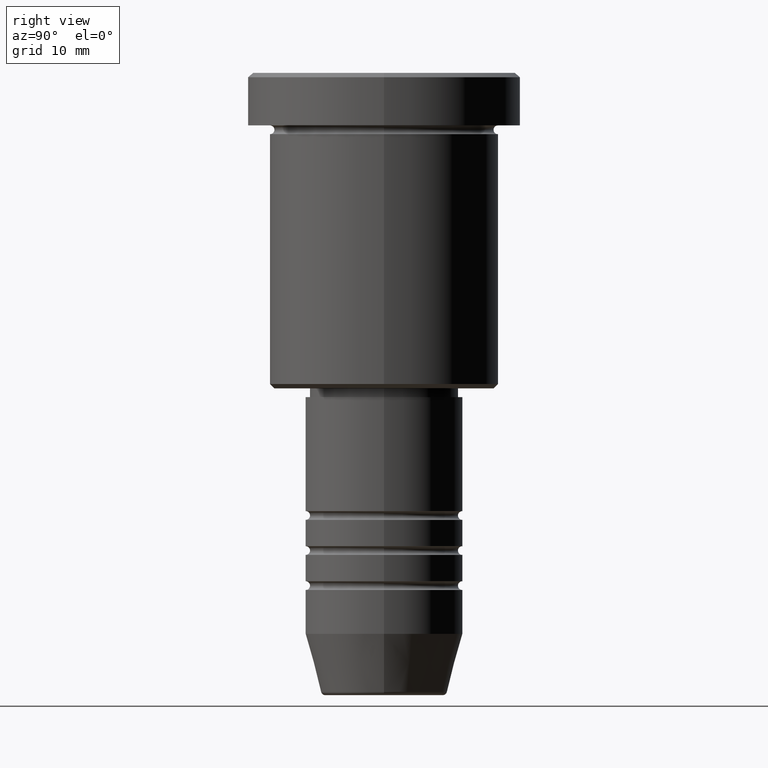
[diagram: clean part render]
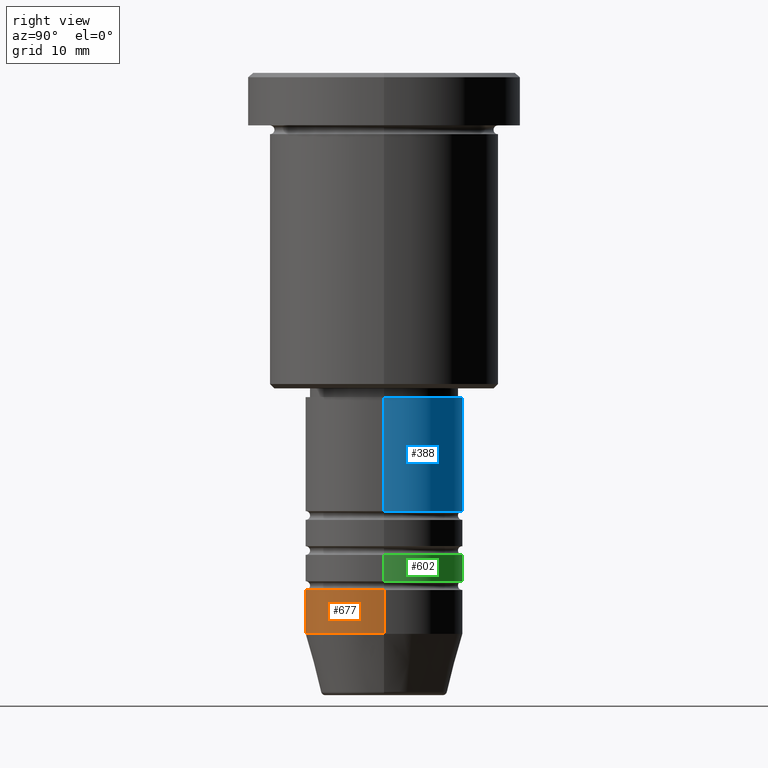
[diagram: same view with three faces highlighted in distinct colors, each labeled with its STEP entity id]
A machine part, right view with three faces highlighted in distinct colors.
Their STEP definitions:

[orange] entity #677 — the highlighted cylindrical surface (partial cylindrical patch) has radius 9 mm, axis along (-0, -0, 1).
#30 = VERTEX_POINT ( 'NONE', #528 ) ;
#46 = AXIS2_PLACEMENT_3D ( 'NONE', #117, #662, #477 ) ;
#51 = EDGE_CURVE ( 'NONE', #225, #103, #625, .T. ) ;
#56 = DIRECTION ( 'NONE',  ( -0.000000000000000000, -0.000000000000000000, 1.000000000000000000 ) ) ;
#58 = AXIS2_PLACEMENT_3D ( 'NONE', #235, #970, #153 ) ;
#103 = VERTEX_POINT ( 'NONE', #449 ) ;
#117 = CARTESIAN_POINT ( 'NONE',  ( 0.000000000000000000, 0.000000000000000000, -64.00000000000000000 ) ) ;
#146 = ORIENTED_EDGE ( 'NONE', *, *, #1099, .T. ) ;
#153 = DIRECTION ( 'NONE',  ( 1.000000000000000000, 0.000000000000000000, 0.000000000000000000 ) ) ;
#225 = VERTEX_POINT ( 'NONE', #921 ) ;
#235 = CARTESIAN_POINT ( 'NONE',  ( 0.000000000000000000, 0.000000000000000000, -59.00000000000000711 ) ) ;
#238 = VECTOR ( 'NONE', #994, 1000.000000000000000 ) ;
#246 = CYLINDRICAL_SURFACE ( 'NONE', #398, 9.000000000000000000 ) ;
#340 = VECTOR ( 'NONE', #56, 1000.000000000000000 ) ;
#398 = AXIS2_PLACEMENT_3D ( 'NONE', #811, #434, #616 ) ;
#434 = DIRECTION ( 'NONE',  ( -0.000000000000000000, -0.000000000000000000, 1.000000000000000000 ) ) ;
#449 = CARTESIAN_POINT ( 'NONE',  ( -9.000000000000000000, 1.102182119232617714E-15, -59.00000000000000711 ) ) ;
#477 = DIRECTION ( 'NONE',  ( 1.000000000000000000, 0.000000000000000000, 0.000000000000000000 ) ) ;
#478 = CIRCLE ( 'NONE', #58, 9.000000000000000000 ) ;
#523 = CARTESIAN_POINT ( 'NONE',  ( -9.000000000000000000, 1.102182119232617714E-15, 0.000000000000000000 ) ) ;
#528 = CARTESIAN_POINT ( 'NONE',  ( 9.000000000000000000, 0.000000000000000000, -59.00000000000000711 ) ) ;
#545 = CARTESIAN_POINT ( 'NONE',  ( 9.000000000000000000, 0.000000000000000000, -64.00000000000000000 ) ) ;
#578 = EDGE_CURVE ( 'NONE', #103, #30, #478, .T. ) ;
#583 = CIRCLE ( 'NONE', #46, 9.000000000000000000 ) ;
#616 = DIRECTION ( 'NONE',  ( 1.000000000000000000, 0.000000000000000000, 0.000000000000000000 ) ) ;
#620 = CARTESIAN_POINT ( 'NONE',  ( 9.000000000000000000, 0.000000000000000000, 0.000000000000000000 ) ) ;
#625 = LINE ( 'NONE', #523, #238 ) ;
#662 = DIRECTION ( 'NONE',  ( -0.000000000000000000, -0.000000000000000000, 1.000000000000000000 ) ) ;
#677 = ADVANCED_FACE ( 'NONE', ( #696 ), #246, .T. ) ;
#696 = FACE_OUTER_BOUND ( 'NONE', #1174, .T. ) ;
#698 = ORIENTED_EDGE ( 'NONE', *, *, #51, .F. ) ;
#702 = EDGE_CURVE ( 'NONE', #961, #30, #1155, .T. ) ;
#811 = CARTESIAN_POINT ( 'NONE',  ( 0.000000000000000000, 0.000000000000000000, 0.000000000000000000 ) ) ;
#921 = CARTESIAN_POINT ( 'NONE',  ( -9.000000000000000000, 1.102182119232617714E-15, -64.00000000000000000 ) ) ;
#960 = ORIENTED_EDGE ( 'NONE', *, *, #702, .T. ) ;
#961 = VERTEX_POINT ( 'NONE', #545 ) ;
#970 = DIRECTION ( 'NONE',  ( -0.000000000000000000, -0.000000000000000000, 1.000000000000000000 ) ) ;
#994 = DIRECTION ( 'NONE',  ( -0.000000000000000000, -0.000000000000000000, 1.000000000000000000 ) ) ;
#1056 = ORIENTED_EDGE ( 'NONE', *, *, #578, .F. ) ;
#1099 = EDGE_CURVE ( 'NONE', #225, #961, #583, .T. ) ;
#1155 = LINE ( 'NONE', #620, #340 ) ;
#1174 = EDGE_LOOP ( 'NONE', ( #698, #146, #960, #1056 ) ) ;

[blue] entity #388 — the highlighted cylindrical surface (partial cylindrical patch) has radius 9 mm, axis along (-0, -0, 1).
#3 = AXIS2_PLACEMENT_3D ( 'NONE', #13, #185, #1103 ) ;
#12 = ORIENTED_EDGE ( 'NONE', *, *, #247, .F. ) ;
#13 = CARTESIAN_POINT ( 'NONE',  ( 0.000000000000000000, 0.000000000000000000, -37.00000000000002132 ) ) ;
#14 = LINE ( 'NONE', #359, #955 ) ;
#52 = CIRCLE ( 'NONE', #567, 9.000000000000001776 ) ;
#57 = VECTOR ( 'NONE', #734, 1000.000000000000000 ) ;
#113 = CARTESIAN_POINT ( 'NONE',  ( -9.000000000000001776, 1.102182119232617911E-15, -49.99999999999989342 ) ) ;
#127 = EDGE_CURVE ( 'NONE', #724, #736, #14, .T. ) ;
#151 = EDGE_CURVE ( 'NONE', #289, #712, #1093, .T. ) ;
#169 = DIRECTION ( 'NONE',  ( -0.000000000000000000, -0.000000000000000000, 1.000000000000000000 ) ) ;
#185 = DIRECTION ( 'NONE',  ( -0.000000000000000000, -0.000000000000000000, 1.000000000000000000 ) ) ;
#210 = CYLINDRICAL_SURFACE ( 'NONE', #279, 9.000000000000000000 ) ;
#232 = CARTESIAN_POINT ( 'NONE',  ( 8.999999999999998224, 0.000000000000000000, -37.00000000000002132 ) ) ;
#247 = EDGE_CURVE ( 'NONE', #736, #712, #842, .T. ) ;
#279 = AXIS2_PLACEMENT_3D ( 'NONE', #863, #1023, #483 ) ;
#289 = VERTEX_POINT ( 'NONE', #113 ) ;
#303 = ORIENTED_EDGE ( 'NONE', *, *, #1067, .T. ) ;
#359 = CARTESIAN_POINT ( 'NONE',  ( 9.000000000000000000, 0.000000000000000000, 0.000000000000000000 ) ) ;
#382 = DIRECTION ( 'NONE',  ( -0.000000000000000000, -0.000000000000000000, 1.000000000000000000 ) ) ;
#388 = ADVANCED_FACE ( 'NONE', ( #682 ), #210, .T. ) ;
#483 = DIRECTION ( 'NONE',  ( 1.000000000000000000, 0.000000000000000000, 0.000000000000000000 ) ) ;
#567 = AXIS2_PLACEMENT_3D ( 'NONE', #658, #382, #651 ) ;
#587 = ORIENTED_EDGE ( 'NONE', *, *, #127, .F. ) ;
#640 = CARTESIAN_POINT ( 'NONE',  ( -9.000000000000000000, 1.102182119232617714E-15, 0.000000000000000000 ) ) ;
#651 = DIRECTION ( 'NONE',  ( 1.000000000000000000, 0.000000000000000000, 0.000000000000000000 ) ) ;
#658 = CARTESIAN_POINT ( 'NONE',  ( 0.000000000000000000, 0.000000000000000000, -49.99999999999989342 ) ) ;
#666 = EDGE_LOOP ( 'NONE', ( #303, #767, #12, #587 ) ) ;
#682 = FACE_OUTER_BOUND ( 'NONE', #666, .T. ) ;
#712 = VERTEX_POINT ( 'NONE', #1176 ) ;
#724 = VERTEX_POINT ( 'NONE', #904 ) ;
#734 = DIRECTION ( 'NONE',  ( -0.000000000000000000, -0.000000000000000000, 1.000000000000000000 ) ) ;
#736 = VERTEX_POINT ( 'NONE', #232 ) ;
#767 = ORIENTED_EDGE ( 'NONE', *, *, #151, .T. ) ;
#842 = CIRCLE ( 'NONE', #3, 8.999999999999998224 ) ;
#863 = CARTESIAN_POINT ( 'NONE',  ( 0.000000000000000000, 0.000000000000000000, 0.000000000000000000 ) ) ;
#904 = CARTESIAN_POINT ( 'NONE',  ( 9.000000000000001776, 0.000000000000000000, -49.99999999999989342 ) ) ;
#955 = VECTOR ( 'NONE', #169, 1000.000000000000000 ) ;
#1023 = DIRECTION ( 'NONE',  ( -0.000000000000000000, -0.000000000000000000, 1.000000000000000000 ) ) ;
#1067 = EDGE_CURVE ( 'NONE', #724, #289, #52, .T. ) ;
#1093 = LINE ( 'NONE', #640, #57 ) ;
#1103 = DIRECTION ( 'NONE',  ( 1.000000000000000000, 0.000000000000000000, 0.000000000000000000 ) ) ;
#1176 = CARTESIAN_POINT ( 'NONE',  ( -8.999999999999998224, 1.102182119232617714E-15, -37.00000000000002132 ) ) ;

[green] entity #602 — the highlighted cylindrical surface (partial cylindrical patch) has radius 9 mm, axis along (-0, -0, 1).
#18 = ORIENTED_EDGE ( 'NONE', *, *, #753, .T. ) ;
#68 = VERTEX_POINT ( 'NONE', #343 ) ;
#157 = LINE ( 'NONE', #344, #824 ) ;
#159 = EDGE_CURVE ( 'NONE', #295, #1025, #739, .T. ) ;
#239 = DIRECTION ( 'NONE',  ( -0.000000000000000000, -0.000000000000000000, 1.000000000000000000 ) ) ;
#248 = CARTESIAN_POINT ( 'NONE',  ( 9.000000000000000000, 0.000000000000000000, -54.99999999999988631 ) ) ;
#285 = EDGE_CURVE ( 'NONE', #1025, #68, #1109, .T. ) ;
#295 = VERTEX_POINT ( 'NONE', #837 ) ;
#327 = CARTESIAN_POINT ( 'NONE',  ( 0.000000000000000000, 0.000000000000000000, -57.99999999999988631 ) ) ;
#343 = CARTESIAN_POINT ( 'NONE',  ( -9.000000000000000000, 1.102182119232617714E-15, -54.99999999999988631 ) ) ;
#344 = CARTESIAN_POINT ( 'NONE',  ( -9.000000000000001776, 1.102182119232617911E-15, 0.000000000000000000 ) ) ;
#353 = DIRECTION ( 'NONE',  ( -0.000000000000000000, -0.000000000000000000, 1.000000000000000000 ) ) ;
#384 = DIRECTION ( 'NONE',  ( 1.000000000000000000, 0.000000000000000000, 0.000000000000000000 ) ) ;
#395 = EDGE_LOOP ( 'NONE', ( #18, #1083, #781, #680 ) ) ;
#492 = AXIS2_PLACEMENT_3D ( 'NONE', #327, #575, #691 ) ;
#532 = CARTESIAN_POINT ( 'NONE',  ( 9.000000000000001776, 0.000000000000000000, 0.000000000000000000 ) ) ;
#575 = DIRECTION ( 'NONE',  ( -0.000000000000000000, -0.000000000000000000, 1.000000000000000000 ) ) ;
#602 = ADVANCED_FACE ( 'NONE', ( #780 ), #693, .T. ) ;
#603 = CARTESIAN_POINT ( 'NONE',  ( -9.000000000000001776, 1.102182119232617911E-15, -57.99999999999988631 ) ) ;
#611 = EDGE_CURVE ( 'NONE', #853, #68, #157, .T. ) ;
#680 = ORIENTED_EDGE ( 'NONE', *, *, #159, .F. ) ;
#691 = DIRECTION ( 'NONE',  ( 1.000000000000000000, 0.000000000000000000, 0.000000000000000000 ) ) ;
#693 = CYLINDRICAL_SURFACE ( 'NONE', #881, 9.000000000000001776 ) ;
#739 = LINE ( 'NONE', #532, #879 ) ;
#753 = EDGE_CURVE ( 'NONE', #295, #853, #1070, .T. ) ;
#763 = AXIS2_PLACEMENT_3D ( 'NONE', #914, #1111, #384 ) ;
#780 = FACE_OUTER_BOUND ( 'NONE', #395, .T. ) ;
#781 = ORIENTED_EDGE ( 'NONE', *, *, #285, .F. ) ;
#783 = DIRECTION ( 'NONE',  ( 1.000000000000000000, 0.000000000000000000, 0.000000000000000000 ) ) ;
#824 = VECTOR ( 'NONE', #353, 1000.000000000000000 ) ;
#837 = CARTESIAN_POINT ( 'NONE',  ( 9.000000000000001776, 0.000000000000000000, -57.99999999999988631 ) ) ;
#853 = VERTEX_POINT ( 'NONE', #603 ) ;
#879 = VECTOR ( 'NONE', #1007, 1000.000000000000000 ) ;
#881 = AXIS2_PLACEMENT_3D ( 'NONE', #1066, #239, #783 ) ;
#914 = CARTESIAN_POINT ( 'NONE',  ( 0.000000000000000000, 0.000000000000000000, -54.99999999999988631 ) ) ;
#1007 = DIRECTION ( 'NONE',  ( -0.000000000000000000, -0.000000000000000000, 1.000000000000000000 ) ) ;
#1025 = VERTEX_POINT ( 'NONE', #248 ) ;
#1066 = CARTESIAN_POINT ( 'NONE',  ( 0.000000000000000000, 0.000000000000000000, 0.000000000000000000 ) ) ;
#1070 = CIRCLE ( 'NONE', #492, 9.000000000000001776 ) ;
#1083 = ORIENTED_EDGE ( 'NONE', *, *, #611, .T. ) ;
#1109 = CIRCLE ( 'NONE', #763, 9.000000000000000000 ) ;
#1111 = DIRECTION ( 'NONE',  ( -0.000000000000000000, -0.000000000000000000, 1.000000000000000000 ) ) ;